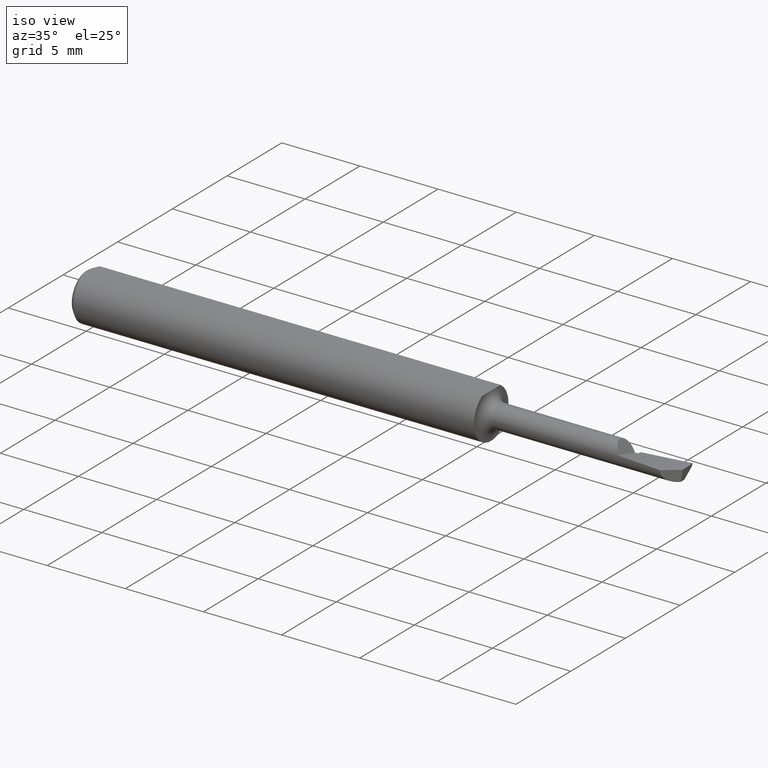
[diagram: clean part render]
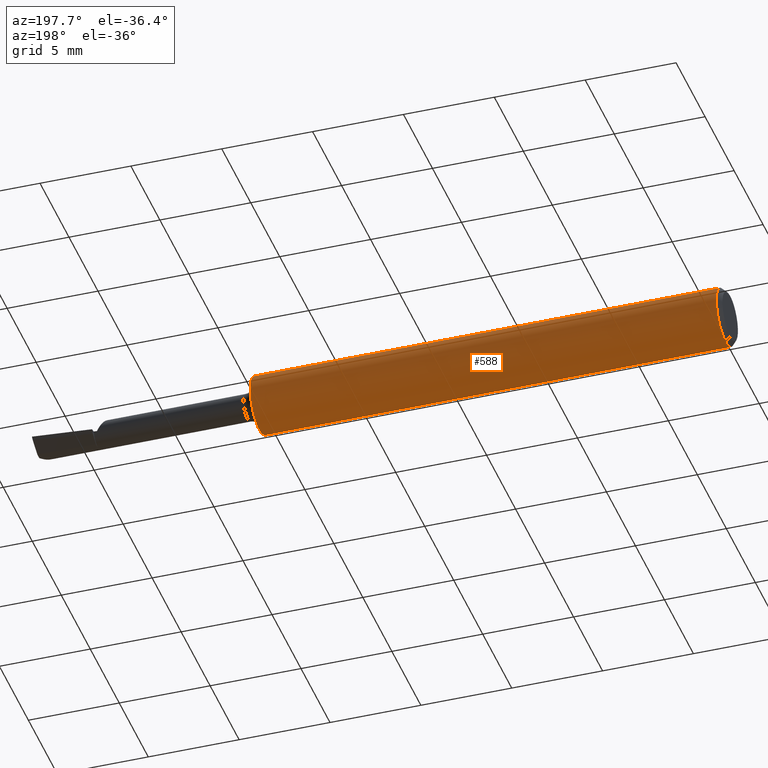
[diagram: tour spotlight — one face highlighted and labeled with its STEP entity id]
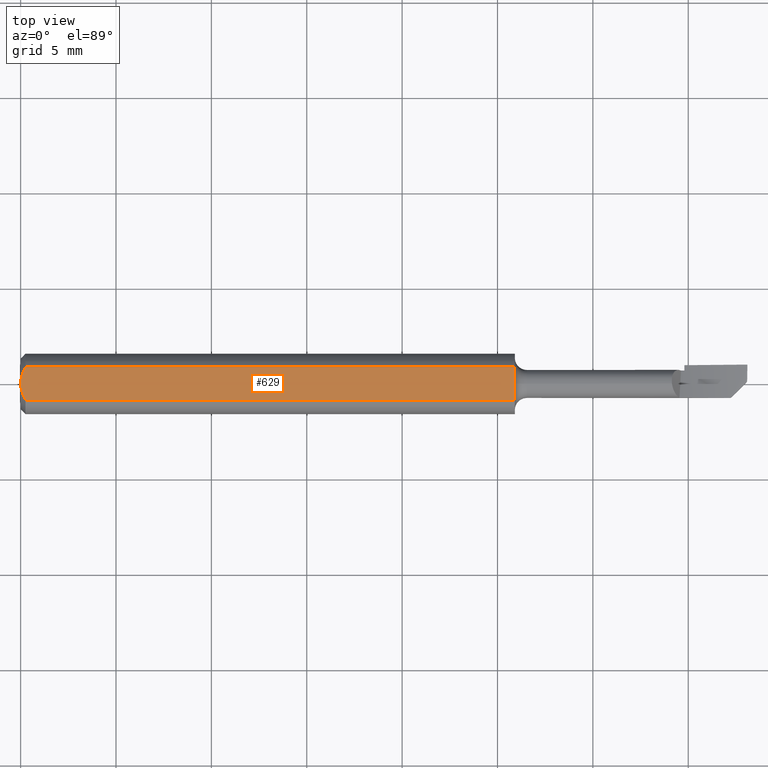
[diagram: tour spotlight — one face highlighted and labeled with its STEP entity id]
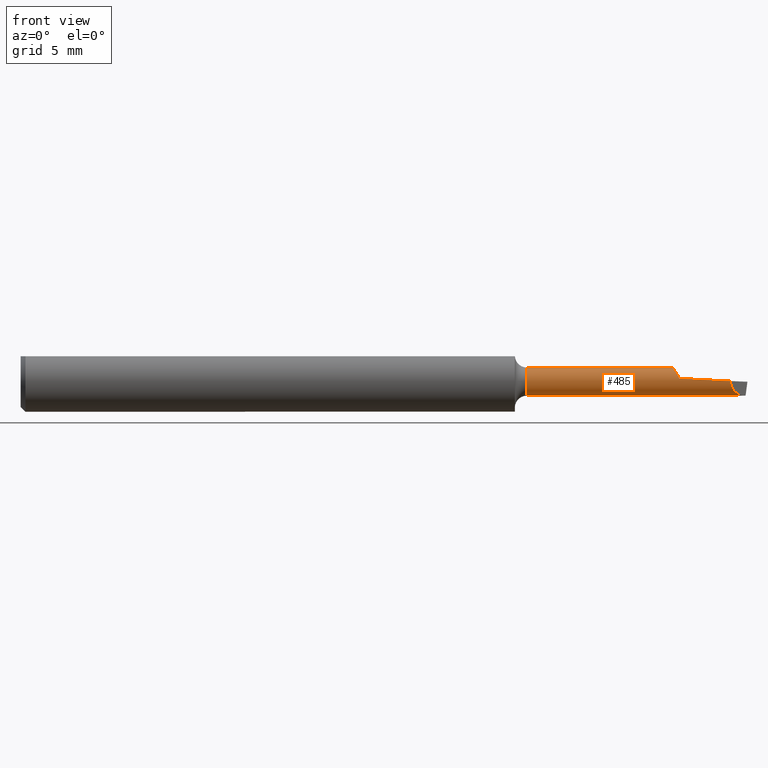
[diagram: tour spotlight — one face highlighted and labeled with its STEP entity id]
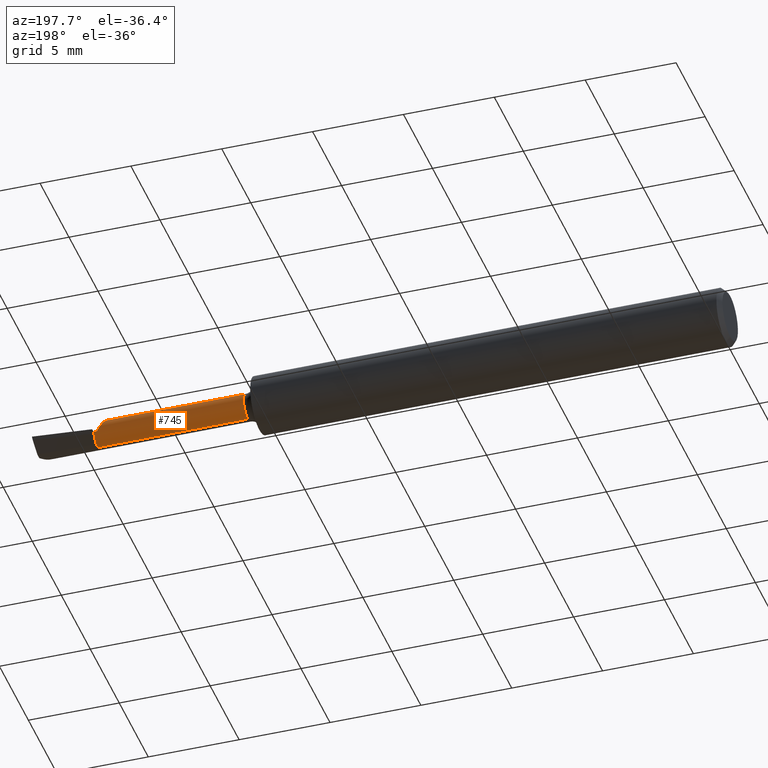
[diagram: tour spotlight — one face highlighted and labeled with its STEP entity id]
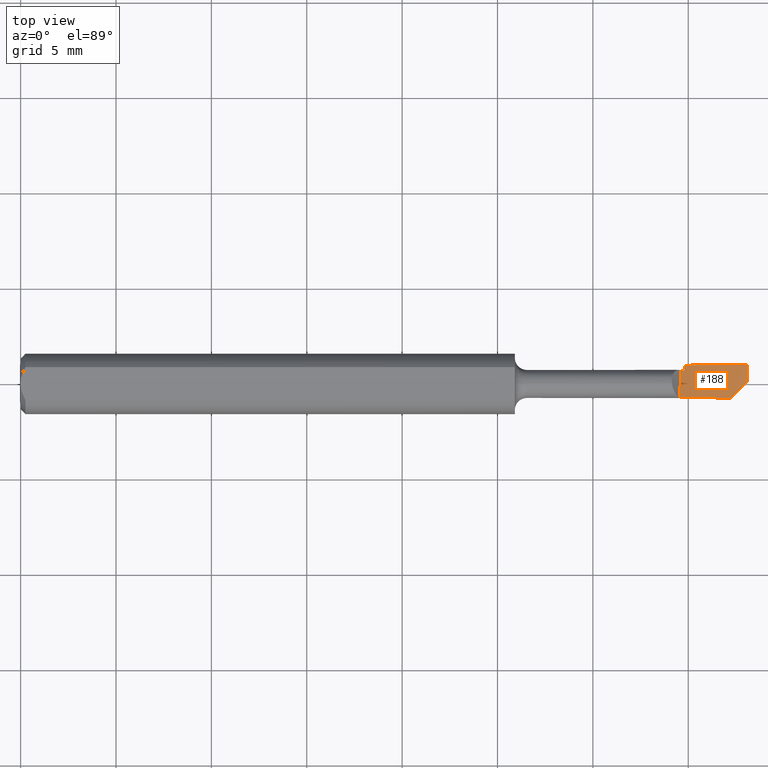
[diagram: tour spotlight — one face highlighted and labeled with its STEP entity id]
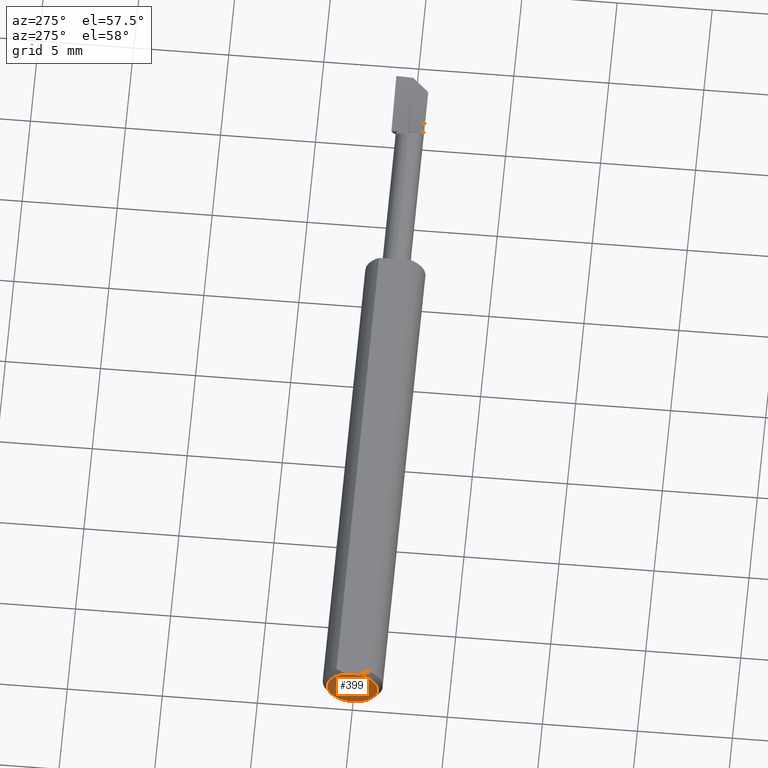
[diagram: tour spotlight — one face highlighted and labeled with its STEP entity id]
A machine part: a face-by-face anatomy tour. The part has 19 B-rep faces; the first image is the clean iso view, then the 6 largest visible faces are spotlighted one at a time (largest first), each with its STEP entity span.

Face 1 — auxiliary view, entity #588. In plain terms, the highlighted cylindrical surface (edge-blend (fillet) strip) has radius 1.5837 mm, axis along (-1, -0, -0).
Definition (entity closure, byte-faithful):
#3 = CYLINDRICAL_SURFACE ( 'NONE', #516, 0.06234999999999997489 ) ;
#21 = DIRECTION ( 'NONE',  ( 0.000000000000000000, 0.000000000000000000, 1.000000000000000000 ) ) ;
#40 = AXIS2_PLACEMENT_3D ( 'NONE', #473, #45, #235 ) ;
#45 = DIRECTION ( 'NONE',  ( -1.000000000000000000, -0.000000000000000000, -0.000000000000000000 ) ) ;
#72 = DIRECTION ( 'NONE',  ( -1.000000000000000000, -0.000000000000000000, -0.000000000000000000 ) ) ;
#76 = DIRECTION ( 'NONE',  ( 1.000000000000000000, 0.000000000000000000, 0.000000000000000000 ) ) ;
#221 = ORIENTED_EDGE ( 'NONE', *, *, #731, .F. ) ;
#235 = DIRECTION ( 'NONE',  ( 0.000000000000000000, 0.000000000000000000, 1.000000000000000000 ) ) ;
#254 = ORIENTED_EDGE ( 'NONE', *, *, #550, .F. ) ;
#268 = CARTESIAN_POINT ( 'NONE',  ( 0.000000000000000000, 0.000000000000000000, 0.000000000000000000 ) ) ;
#269 = EDGE_CURVE ( 'NONE', #472, #372, #536, .T. ) ;
#275 = CARTESIAN_POINT ( 'NONE',  ( 0.01000000000000000021, 0.000000000000000000, -0.06235000000000000264 ) ) ;
#278 = CARTESIAN_POINT ( 'NONE',  ( 0.000000000000000000, -0.03386738844375219298, 0.05234999999999997988 ) ) ;
#286 = CARTESIAN_POINT ( 'NONE',  ( 0.01000000000000000021, 0.000000000000000000, 0.000000000000000000 ) ) ;
#287 = CIRCLE ( 'NONE', #40, 0.06235000000000000264 ) ;
#309 = VERTEX_POINT ( 'NONE', #275 ) ;
#317 = ORIENTED_EDGE ( 'NONE', *, *, #269, .F. ) ;
#340 = LINE ( 'NONE', #278, #794 ) ;
#344 = DIRECTION ( 'NONE',  ( 0.000000000000000000, 0.000000000000000000, 1.000000000000000000 ) ) ;
#372 = VERTEX_POINT ( 'NONE', #433 ) ;
#385 = CARTESIAN_POINT ( 'NONE',  ( 1.020000000000000240, 0.03386738844375217911, 0.05234999999999997988 ) ) ;
#392 = EDGE_LOOP ( 'NONE', ( #317, #254, #459, #221, #800 ) ) ;
#433 = CARTESIAN_POINT ( 'NONE',  ( 0.01000000000000000021, 0.03386738844375217911, 0.05234999999999997988 ) ) ;
#435 = VERTEX_POINT ( 'NONE', #587 ) ;
#436 = CARTESIAN_POINT ( 'NONE',  ( 1.020000000000000240, -0.03386738844375219298, 0.05234999999999997988 ) ) ;
#459 = ORIENTED_EDGE ( 'NONE', *, *, #703, .F. ) ;
#472 = VERTEX_POINT ( 'NONE', #385 ) ;
#473 = CARTESIAN_POINT ( 'NONE',  ( 0.01000000000000000021, 0.000000000000000000, 0.000000000000000000 ) ) ;
#477 = FACE_OUTER_BOUND ( 'NONE', #392, .T. ) ;
#491 = VECTOR ( 'NONE', #792, 39.37007874015748143 ) ;
#500 = EDGE_CURVE ( 'NONE', #372, #309, #832, .T. ) ;
#516 = AXIS2_PLACEMENT_3D ( 'NONE', #268, #72, #344 ) ;
#535 = DIRECTION ( 'NONE',  ( 1.000000000000000000, 0.000000000000000000, 0.000000000000000000 ) ) ;
#536 = LINE ( 'NONE', #655, #491 ) ;
#550 = EDGE_CURVE ( 'NONE', #780, #472, #647, .T. ) ;
#554 = AXIS2_PLACEMENT_3D ( 'NONE', #286, #664, #21 ) ;
#587 = CARTESIAN_POINT ( 'NONE',  ( 0.01000000000000000021, -0.03386738844375219298, 0.05234999999999997988 ) ) ;
#588 = ADVANCED_FACE ( 'NONE', ( #477 ), #3, .T. ) ;
#591 = CARTESIAN_POINT ( 'NONE',  ( 1.020000000000000240, 0.000000000000000000, 0.000000000000000000 ) ) ;
#647 = CIRCLE ( 'NONE', #762, 0.06234999999999997489 ) ;
#655 = CARTESIAN_POINT ( 'NONE',  ( 0.000000000000000000, 0.03386738844375217911, 0.05234999999999997988 ) ) ;
#661 = DIRECTION ( 'NONE',  ( 0.000000000000000000, 0.000000000000000000, -1.000000000000000000 ) ) ;
#664 = DIRECTION ( 'NONE',  ( -1.000000000000000000, -0.000000000000000000, -0.000000000000000000 ) ) ;
#703 = EDGE_CURVE ( 'NONE', #435, #780, #340, .T. ) ;
#731 = EDGE_CURVE ( 'NONE', #309, #435, #287, .T. ) ;
#762 = AXIS2_PLACEMENT_3D ( 'NONE', #591, #76, #661 ) ;
#780 = VERTEX_POINT ( 'NONE', #436 ) ;
#792 = DIRECTION ( 'NONE',  ( -1.000000000000000000, -0.000000000000000000, -0.000000000000000000 ) ) ;
#794 = VECTOR ( 'NONE', #535, 39.37007874015748143 ) ;
#800 = ORIENTED_EDGE ( 'NONE', *, *, #500, .F. ) ;
#832 = CIRCLE ( 'NONE', #554, 0.06235000000000000264 ) ;

Face 2 — top view, entity #629. In plain terms, the highlighted planar face has unit normal (0, -0, 1).
Definition (entity closure, byte-faithful):
#39 = CARTESIAN_POINT ( 'NONE',  ( -7.517250668112770884E-16, 0.005954997531773981688, 0.05234999999999998682 ) ) ;
#41 = EDGE_CURVE ( 'NONE', #159, #435, #117, .T. ) ;
#44 = CARTESIAN_POINT ( 'NONE',  ( -7.325417714211966649E-16, -0.005965286321680239069, 0.05234999999999997988 ) ) ;
#51 = LINE ( 'NONE', #312, #313 ) ;
#61 = EDGE_CURVE ( 'NONE', #372, #159, #132, .T. ) ;
#104 = CARTESIAN_POINT ( 'NONE',  ( 0.01000000000000000021, -0.03386738844375219298, 0.05234999999999997988 ) ) ;
#105 = CARTESIAN_POINT ( 'NONE',  ( 1.020054509425549538, 0.002221241925613740269, 0.05234999999999998682 ) ) ;
#117 = B_SPLINE_CURVE_WITH_KNOTS ( 'NONE', 3,
 ( #681, #44, #626, #749, #167, #104 ),
 .UNSPECIFIED., .F., .F.,
 ( 4, 2, 4 ),
 ( 0.001820301466808375672, 0.002269751589838321822, 0.002719201712868267538 ),
 .UNSPECIFIED. ) ;
#123 = CARTESIAN_POINT ( 'NONE',  ( 1.020016726836668663, -0.008831220142528684036, 0.05234999999999998682 ) ) ;
#132 = B_SPLINE_CURVE_WITH_KNOTS ( 'NONE', 3,
 ( #229, #820, #246, #183, #39, #363 ),
 .UNSPECIFIED., .F., .F.,
 ( 4, 2, 4 ),
 ( 0.0009229516234080545421, 0.001371626545108214999, 0.001820301466808375672 ),
 .UNSPECIFIED. ) ;
#135 = ORIENTED_EDGE ( 'NONE', *, *, #41, .T. ) ;
#157 = CARTESIAN_POINT ( 'NONE',  ( 1.020000000000000462, -0.01324679206449632871, 0.05234999999999997988 ) ) ;
#159 = VERTEX_POINT ( 'NONE', #449 ) ;
#167 = CARTESIAN_POINT ( 'NONE',  ( 0.007163450771350544227, -0.02864528976618612235, 0.05234999999999998682 ) ) ;
#183 = CARTESIAN_POINT ( 'NONE',  ( 0.001063697276021673783, 0.01189177144351694256, 0.05234999999999998682 ) ) ;
#192 = ORIENTED_EDGE ( 'NONE', *, *, #790, .F. ) ;
#199 = EDGE_CURVE ( 'NONE', #643, #522, #796, .T. ) ;
#207 = DIRECTION ( 'NONE',  ( 0.000000000000000000, -1.000000000000000000, -1.036675771730518732E-16 ) ) ;
#209 = ORIENTED_EDGE ( 'NONE', *, *, #269, .T. ) ;
#218 = AXIS2_PLACEMENT_3D ( 'NONE', #776, #482, #207 ) ;
#229 = CARTESIAN_POINT ( 'NONE',  ( 0.01000000000000000021, 0.03386738844375217911, 0.05234999999999997988 ) ) ;
#246 = CARTESIAN_POINT ( 'NONE',  ( 0.004671770759546980435, 0.02323517832780102113, 0.05234999999999997988 ) ) ;
#253 = CARTESIAN_POINT ( 'NONE',  ( 1.020054509425549760, 0.000000000000000000, 0.05234999999999997988 ) ) ;
#269 = EDGE_CURVE ( 'NONE', #472, #372, #536, .T. ) ;
#278 = CARTESIAN_POINT ( 'NONE',  ( 0.000000000000000000, -0.03386738844375219298, 0.05234999999999997988 ) ) ;
#300 = VERTEX_POINT ( 'NONE', #345 ) ;
#312 = CARTESIAN_POINT ( 'NONE',  ( 1.020000000000000240, 0.1123499999999999360, 0.05234999999999998682 ) ) ;
#313 = VECTOR ( 'NONE', #572, 39.37007874015748143 ) ;
#339 = B_SPLINE_CURVE_WITH_KNOTS ( 'NONE', 3,
 ( #418, #801, #669, #732, #105, #564 ),
 .UNSPECIFIED., .F., .F.,
 ( 4, 2, 4 ),
 ( 0.006944950396032058791, 0.007114182746579529246, 0.007283415097126999700 ),
 .UNSPECIFIED. ) ;
#340 = LINE ( 'NONE', #278, #794 ) ;
#342 = ORIENTED_EDGE ( 'NONE', *, *, #465, .F. ) ;
#345 = CARTESIAN_POINT ( 'NONE',  ( 1.020000000000000240, 0.01324679206449631483, 0.05234999999999997988 ) ) ;
#363 = CARTESIAN_POINT ( 'NONE',  ( 0.000000000000000000, -5.426997665009263557E-18, 0.05234999999999997988 ) ) ;
#372 = VERTEX_POINT ( 'NONE', #433 ) ;
#385 = CARTESIAN_POINT ( 'NONE',  ( 1.020000000000000240, 0.03386738844375217911, 0.05234999999999997988 ) ) ;
#400 = CARTESIAN_POINT ( 'NONE',  ( 1.020054509425549760, 0.000000000000000000, 0.05234999999999997988 ) ) ;
#410 = FACE_OUTER_BOUND ( 'NONE', #533, .T. ) ;
#418 = CARTESIAN_POINT ( 'NONE',  ( 1.020000000000000240, 0.01324679206449631483, 0.05234999999999997988 ) ) ;
#432 = CARTESIAN_POINT ( 'NONE',  ( 1.020000000000000240, 0.1123499999999999360, 0.05234999999999998682 ) ) ;
#433 = CARTESIAN_POINT ( 'NONE',  ( 0.01000000000000000021, 0.03386738844375217911, 0.05234999999999997988 ) ) ;
#435 = VERTEX_POINT ( 'NONE', #587 ) ;
#436 = CARTESIAN_POINT ( 'NONE',  ( 1.020000000000000240, -0.03386738844375219298, 0.05234999999999997988 ) ) ;
#449 = CARTESIAN_POINT ( 'NONE',  ( 0.000000000000000000, -5.426997665009263557E-18, 0.05234999999999997988 ) ) ;
#450 = ORIENTED_EDGE ( 'NONE', *, *, #781, .F. ) ;
#465 = EDGE_CURVE ( 'NONE', #472, #300, #51, .T. ) ;
#469 = PLANE ( 'NONE',  #218 ) ;
#472 = VERTEX_POINT ( 'NONE', #385 ) ;
#482 = DIRECTION ( 'NONE',  ( 0.000000000000000000, -1.036675771730518732E-16, 1.000000000000000000 ) ) ;
#491 = VECTOR ( 'NONE', #792, 39.37007874015748143 ) ;
#512 = CARTESIAN_POINT ( 'NONE',  ( 1.020000000000000240, -0.01103915351157545334, 0.05234999999999998682 ) ) ;
#522 = VERTEX_POINT ( 'NONE', #157 ) ;
#533 = EDGE_LOOP ( 'NONE', ( #746, #135, #545, #192, #741, #450, #342, #209 ) ) ;
#535 = DIRECTION ( 'NONE',  ( 1.000000000000000000, 0.000000000000000000, 0.000000000000000000 ) ) ;
#536 = LINE ( 'NONE', #655, #491 ) ;
#545 = ORIENTED_EDGE ( 'NONE', *, *, #703, .T. ) ;
#564 = CARTESIAN_POINT ( 'NONE',  ( 1.020054509425549760, 0.000000000000000000, 0.05234999999999997988 ) ) ;
#572 = DIRECTION ( 'NONE',  ( 0.000000000000000000, -1.000000000000000000, -1.036675771730518732E-16 ) ) ;
#580 = CARTESIAN_POINT ( 'NONE',  ( 1.020044089140406340, -0.004415460766874475772, 0.05234999999999997988 ) ) ;
#587 = CARTESIAN_POINT ( 'NONE',  ( 0.01000000000000000021, -0.03386738844375219298, 0.05234999999999997988 ) ) ;
#626 = CARTESIAN_POINT ( 'NONE',  ( 0.001055043921633259376, -0.01186408073210959077, 0.05234999999999997988 ) ) ;
#629 = ADVANCED_FACE ( 'NONE', ( #410 ), #469, .T. ) ;
#643 = VERTEX_POINT ( 'NONE', #400 ) ;
#655 = CARTESIAN_POINT ( 'NONE',  ( 0.000000000000000000, 0.03386738844375217911, 0.05234999999999997988 ) ) ;
#669 = CARTESIAN_POINT ( 'NONE',  ( 1.020016726754685576, 0.008831237203312275463, 0.05234999999999997988 ) ) ;
#681 = CARTESIAN_POINT ( 'NONE',  ( 0.000000000000000000, -5.426997665009263557E-18, 0.05234999999999997988 ) ) ;
#682 = DIRECTION ( 'NONE',  ( 0.000000000000000000, -1.000000000000000000, -1.036675771730518732E-16 ) ) ;
#703 = EDGE_CURVE ( 'NONE', #435, #780, #340, .T. ) ;
#732 = CARTESIAN_POINT ( 'NONE',  ( 1.020044089684449151, 0.004415369138371852756, 0.05234999999999998682 ) ) ;
#741 = ORIENTED_EDGE ( 'NONE', *, *, #199, .F. ) ;
#742 = LINE ( 'NONE', #432, #778 ) ;
#746 = ORIENTED_EDGE ( 'NONE', *, *, #61, .T. ) ;
#749 = CARTESIAN_POINT ( 'NONE',  ( 0.004679365186781217663, -0.02325953974079653444, 0.05234999999999998682 ) ) ;
#756 = CARTESIAN_POINT ( 'NONE',  ( 1.020054509425549316, -0.002207638552920876233, 0.05234999999999997988 ) ) ;
#766 = CARTESIAN_POINT ( 'NONE',  ( 1.020000000000000462, -0.01324679206449632871, 0.05234999999999997988 ) ) ;
#776 = CARTESIAN_POINT ( 'NONE',  ( 1.500787401574803281, 0.08234999999999999265, 0.05234999999999998682 ) ) ;
#778 = VECTOR ( 'NONE', #682, 39.37007874015748143 ) ;
#780 = VERTEX_POINT ( 'NONE', #436 ) ;
#781 = EDGE_CURVE ( 'NONE', #300, #643, #339, .T. ) ;
#790 = EDGE_CURVE ( 'NONE', #522, #780, #742, .T. ) ;
#792 = DIRECTION ( 'NONE',  ( -1.000000000000000000, -0.000000000000000000, -0.000000000000000000 ) ) ;
#794 = VECTOR ( 'NONE', #535, 39.37007874015748143 ) ;
#796 = B_SPLINE_CURVE_WITH_KNOTS ( 'NONE', 3,
 ( #253, #756, #580, #123, #512, #766 ),
 .UNSPECIFIED., .F., .F.,
 ( 4, 2, 4 ),
 ( 1.787496019292306224E-19, 0.0001681959345183834385, 0.0003363918690367666601 ),
 .UNSPECIFIED. ) ;
#801 = CARTESIAN_POINT ( 'NONE',  ( 1.020000000000000240, 0.01103926091051973292, 0.05234999999999997988 ) ) ;
#820 = CARTESIAN_POINT ( 'NONE',  ( 0.007185421074056353059, 0.02868573718286557619, 0.05234999999999997988 ) ) ;

Face 3 — front view, entity #485. In plain terms, the highlighted cylindrical surface (edge-blend (fillet) strip) has radius 0.7366 mm, axis along (-1, -0, -0).
Definition (entity closure, byte-faithful):
#5 = CARTESIAN_POINT ( 'NONE',  ( 1.344726164215733766, -0.003004772557674084601, 0.02899992847466937099 ) ) ;
#17 = CARTESIAN_POINT ( 'NONE',  ( 1.349748066349188091, -0.01719362167920830339, 0.02335794584430941206 ) ) ;
#24 = CARTESIAN_POINT ( 'NONE',  ( 1.352629411863616182, -0.02204390430116885680, 0.01911207971779406781 ) ) ;
#26 = DIRECTION ( 'NONE',  ( 1.000000000000000000, -0.000000000000000000, -0.000000000000000000 ) ) ;
#46 = EDGE_CURVE ( 'NONE', #708, #653, #359, .T. ) ;
#49 = CARTESIAN_POINT ( 'NONE',  ( 0.000000000000000000, 3.551475717527328763E-18, -0.02900000000000003617 ) ) ;
#50 =( BOUNDED_CURVE ( )  B_SPLINE_CURVE ( 2, ( #146, #721, #594 ),
 .UNSPECIFIED., .F., .T. ) 
 B_SPLINE_CURVE_WITH_KNOTS ( ( 3, 3 ),
 ( 0.08047774069797776486, 0.3228623492509392068 ),
 .UNSPECIFIED. ) 
 CURVE ( )  GEOMETRIC_REPRESENTATION_ITEM ( )  RATIONAL_B_SPLINE_CURVE ( ( 0.9829172617772616860, 0.9766765724518691183, 0.9793588826515180479 ) ) 
 REPRESENTATION_ITEM ( '' )  );
#55 = FACE_OUTER_BOUND ( 'NONE', #270, .T. ) ;
#85 = CARTESIAN_POINT ( 'NONE',  ( 1.464867652343246229, -0.02962234952521405201, -0.01641024028969626306 ) ) ;
#86 = DIRECTION ( 'NONE',  ( 0.000000000000000000, 0.000000000000000000, 1.000000000000000000 ) ) ;
#109 = AXIS2_PLACEMENT_3D ( 'NONE', #601, #782, #715 ) ;
#143 = CARTESIAN_POINT ( 'NONE',  ( 1.344279704701649258, -1.051655313558084413E-06, 0.02900531566010896428 ) ) ;
#146 = CARTESIAN_POINT ( 'NONE',  ( 1.465509546751890158, -0.02898045511657077258, 0.001064528645190098528 ) ) ;
#147 = CARTESIAN_POINT ( 'NONE',  ( 1.348641358214019981, -0.01492363627753145669, 0.02488129085342524749 ) ) ;
#150 = CARTESIAN_POINT ( 'NONE',  ( 1.465509546751890158, -0.02898045511657077258, 0.001064528645190098528 ) ) ;
#177 = B_SPLINE_CURVE_WITH_KNOTS ( 'NONE', 3,
 ( #602, #787, #599, #24, #349, #711, #279, #17, #216, #147, #282, #544, #592, #5, #143 ),
 .UNSPECIFIED., .F., .F.,
 ( 4, 2, 2, 2, 1, 2, 2, 4 ),
 ( 0.000000000000000000, 0.2374222107961118655, 0.4748444215922237310, 0.5045221979417364722, 0.5341999742912492133, 0.5935555269902809128, 0.7122666323883383166, 0.9496888431844479062 ),
 .UNSPECIFIED. ) ;
#179 = VERTEX_POINT ( 'NONE', #704 ) ;
#196 = VERTEX_POINT ( 'NONE', #825 ) ;
#204 = VERTEX_POINT ( 'NONE', #150 ) ;
#214 = CARTESIAN_POINT ( 'NONE',  ( 1.045000000000000373, 0.000000000000000000, 0.02900000000000007086 ) ) ;
#216 = CARTESIAN_POINT ( 'NONE',  ( 1.349173603411896627, -0.01607537474992507681, 0.02416714976763952721 ) ) ;
#217 = ORIENTED_EDGE ( 'NONE', *, *, #807, .T. ) ;
#219 = CARTESIAN_POINT ( 'NONE',  ( 1.477003447669319014, -0.01748655419914141654, -0.02900000000000016800 ) ) ;
#222 = CARTESIAN_POINT ( 'NONE',  ( 1.465509546751890158, -0.02898045511657077258, 0.001064528645190098528 ) ) ;
#248 = CARTESIAN_POINT ( 'NONE',  ( 1.494490001868460816, 1.707404996040164512E-17, -0.02900000000000007086 ) ) ;
#270 = EDGE_LOOP ( 'NONE', ( #795, #217, #346, #639, #666, #496, #529 ) ) ;
#279 = CARTESIAN_POINT ( 'NONE',  ( 1.350140423360584929, -0.01793032781908371689, 0.02279731573702539413 ) ) ;
#282 = CARTESIAN_POINT ( 'NONE',  ( 1.347633158137486076, -0.01259069581527005877, 0.02618489251447328470 ) ) ;
#285 = VECTOR ( 'NONE', #561, 39.37007874015748143 ) ;
#289 = EDGE_CURVE ( 'NONE', #653, #730, #710, .T. ) ;
#301 = EDGE_CURVE ( 'NONE', #196, #179, #177, .T. ) ;
#324 = VECTOR ( 'NONE', #568, 39.37007874015748143 ) ;
#332 = CARTESIAN_POINT ( 'NONE',  ( 1.494490001868460816, 1.707404996040164512E-17, -0.02900000000000007086 ) ) ;
#343 = EDGE_CURVE ( 'NONE', #179, #730, #729, .T. ) ;
#346 = ORIENTED_EDGE ( 'NONE', *, *, #578, .F. ) ;
#349 = CARTESIAN_POINT ( 'NONE',  ( 1.351339622621705594, -0.02006848466437715153, 0.02105972589682208324 ) ) ;
#356 =( BOUNDED_CURVE ( )  B_SPLINE_CURVE ( 3, ( #222, #85, #219, #332 ),
 .UNSPECIFIED., .F., .T. ) 
 B_SPLINE_CURVE_WITH_KNOTS ( ( 4, 4 ),
 ( 6.246469174072000641, 7.853981633974489895 ),
 .UNSPECIFIED. ) 
 CURVE ( )  GEOMETRIC_REPRESENTATION_ITEM ( )  RATIONAL_B_SPLINE_CURVE ( ( 1.000000000000000000, 0.7960048308304698006, 0.7960048308304698006, 1.000000000000000000 ) ) 
 REPRESENTATION_ITEM ( '' )  );
#357 = CARTESIAN_POINT ( 'NONE',  ( 0.000000000000000000, 0.000000000000000000, 0.02900000000000003617 ) ) ;
#359 = LINE ( 'NONE', #49, #324 ) ;
#364 = LINE ( 'NONE', #608, #674 ) ;
#403 = VERTEX_POINT ( 'NONE', #248 ) ;
#485 = ADVANCED_FACE ( 'NONE', ( #55 ), #654, .T. ) ;
#496 = ORIENTED_EDGE ( 'NONE', *, *, #343, .T. ) ;
#529 = ORIENTED_EDGE ( 'NONE', *, *, #289, .F. ) ;
#542 = AXIS2_PLACEMENT_3D ( 'NONE', #595, #716, #86 ) ;
#544 = CARTESIAN_POINT ( 'NONE',  ( 1.347036078512089619, -0.01099654640964999562, 0.02688729779581930032 ) ) ;
#561 = DIRECTION ( 'NONE',  ( -1.000000000000000000, -0.000000000000000000, -0.000000000000000000 ) ) ;
#568 = DIRECTION ( 'NONE',  ( -1.000000000000000000, -0.000000000000000000, -0.000000000000000000 ) ) ;
#578 = EDGE_CURVE ( 'NONE', #204, #403, #356, .T. ) ;
#592 = CARTESIAN_POINT ( 'NONE',  ( 1.345470000912774688, -0.006204670990901267960, 0.02852902593320150865 ) ) ;
#594 = CARTESIAN_POINT ( 'NONE',  ( 1.359812946886985507, -0.02825286555653429288, 0.006540304873964293553 ) ) ;
#595 = CARTESIAN_POINT ( 'NONE',  ( 1.045000000000000373, 0.000000000000000000, 0.000000000000000000 ) ) ;
#599 = CARTESIAN_POINT ( 'NONE',  ( 1.355792604604262985, -0.02567552928509290663, 0.01385541424529569514 ) ) ;
#601 = CARTESIAN_POINT ( 'NONE',  ( 0.000000000000000000, 0.000000000000000000, 0.000000000000000000 ) ) ;
#602 = CARTESIAN_POINT ( 'NONE',  ( 1.359812946886985507, -0.02825286555653429288, 0.006540304873964293553 ) ) ;
#608 = CARTESIAN_POINT ( 'NONE',  ( 1.300000000000000044, 0.000000000000000000, -0.02900000000000007086 ) ) ;
#634 = EDGE_CURVE ( 'NONE', #204, #196, #50, .T. ) ;
#639 = ORIENTED_EDGE ( 'NONE', *, *, #634, .T. ) ;
#653 = VERTEX_POINT ( 'NONE', #718 ) ;
#654 = CYLINDRICAL_SURFACE ( 'NONE', #109, 0.02900000000000003617 ) ;
#666 = ORIENTED_EDGE ( 'NONE', *, *, #301, .T. ) ;
#674 = VECTOR ( 'NONE', #26, 39.37007874015748143 ) ;
#704 = CARTESIAN_POINT ( 'NONE',  ( 1.344279704701649258, -1.051655313558084413E-06, 0.02900531566010896428 ) ) ;
#708 = VERTEX_POINT ( 'NONE', #786 ) ;
#710 = CIRCLE ( 'NONE', #542, 0.02900000000000007086 ) ;
#711 = CARTESIAN_POINT ( 'NONE',  ( 1.350216892744018349, -0.01806687995065978450, 0.02268633897093772292 ) ) ;
#715 = DIRECTION ( 'NONE',  ( 0.000000000000000000, 0.000000000000000000, 1.000000000000000000 ) ) ;
#716 = DIRECTION ( 'NONE',  ( -1.000000000000000000, -0.000000000000000000, -0.000000000000000000 ) ) ;
#718 = CARTESIAN_POINT ( 'NONE',  ( 1.045000000000000373, 5.082284216461520734E-18, -0.02900000000000007086 ) ) ;
#721 = CARTESIAN_POINT ( 'NONE',  ( 1.412853423040207890, -0.02887860673711884277, 0.003837222710528911691 ) ) ;
#729 = LINE ( 'NONE', #357, #285 ) ;
#730 = VERTEX_POINT ( 'NONE', #214 ) ;
#782 = DIRECTION ( 'NONE',  ( -1.000000000000000000, -0.000000000000000000, -0.000000000000000000 ) ) ;
#786 = CARTESIAN_POINT ( 'NONE',  ( 1.370000000000000329, 0.000000000000000000, -0.02900000000000007086 ) ) ;
#787 = CARTESIAN_POINT ( 'NONE',  ( 1.357666008102997868, -0.02732945430762753411, 0.01053007296735504125 ) ) ;
#795 = ORIENTED_EDGE ( 'NONE', *, *, #46, .F. ) ;
#807 = EDGE_CURVE ( 'NONE', #708, #403, #364, .T. ) ;
#825 = CARTESIAN_POINT ( 'NONE',  ( 1.359812946886985507, -0.02825286555653429288, 0.006540304873964293553 ) ) ;

Face 4 — auxiliary view, entity #745. In plain terms, the highlighted cylindrical surface (edge-blend (fillet) strip) has radius 0.7366 mm, axis along (-1, -0, -0).
Definition (entity closure, byte-faithful):
#16 = DIRECTION ( 'NONE',  ( 0.000000000000000000, 0.000000000000000000, 1.000000000000000000 ) ) ;
#42 = CARTESIAN_POINT ( 'NONE',  ( 1.344038699846793250, 0.001865842263035611889, 0.02894227192546876964 ) ) ;
#46 = EDGE_CURVE ( 'NONE', #708, #653, #359, .T. ) ;
#49 = CARTESIAN_POINT ( 'NONE',  ( 0.000000000000000000, 3.551475717527328763E-18, -0.02900000000000003617 ) ) ;
#69 = CARTESIAN_POINT ( 'NONE',  ( 1.351019987044591142, 0.02659785948365133920, 0.01155670766509940030 ) ) ;
#71 = EDGE_CURVE ( 'NONE', #730, #653, #501, .T. ) ;
#88 = EDGE_CURVE ( 'NONE', #815, #334, #672, .T. ) ;
#91 = VERTEX_POINT ( 'NONE', #319 ) ;
#93 = B_SPLINE_CURVE_WITH_KNOTS ( 'NONE', 3,
 ( #809, #683, #107, #366, #42, #676 ),
 .UNSPECIFIED., .F., .F.,
 ( 4, 2, 4 ),
 ( 0.9496888431844479062, 0.9748444215922239531, 1.000000000000000000 ),
 .UNSPECIFIED. ) ;
#107 = CARTESIAN_POINT ( 'NONE',  ( 1.344175667506402494, 0.0007500834462737943076, 0.02899269570108420693 ) ) ;
#137 = CARTESIAN_POINT ( 'NONE',  ( 1.348826993607886715, 0.02449701040838887442, 0.01554878266840158466 ) ) ;
#149 = CARTESIAN_POINT ( 'NONE',  ( 1.370000000000000329, 0.000000000000000000, 0.000000000000000000 ) ) ;
#152 = ORIENTED_EDGE ( 'NONE', *, *, #375, .T. ) ;
#174 = DIRECTION ( 'NONE',  ( -1.000000000000000000, -0.000000000000000000, -0.000000000000000000 ) ) ;
#179 = VERTEX_POINT ( 'NONE', #704 ) ;
#194 = CARTESIAN_POINT ( 'NONE',  ( 1.357117877114487614, 0.02914455547433147942, 0.001505839664468261799 ) ) ;
#198 = CARTESIAN_POINT ( 'NONE',  ( 1.345136841044362708, 0.01792130582730419239, 0.02308197722382085079 ) ) ;
#202 = CARTESIAN_POINT ( 'NONE',  ( 1.351082740088656919, 0.02664559147929465577, 0.01144622539910728799 ) ) ;
#210 = DIRECTION ( 'NONE',  ( -1.000000000000000000, -0.000000000000000000, -0.000000000000000000 ) ) ;
#214 = CARTESIAN_POINT ( 'NONE',  ( 1.045000000000000373, 0.000000000000000000, 0.02900000000000007086 ) ) ;
#226 = CARTESIAN_POINT ( 'NONE',  ( 0.000000000000000000, 0.000000000000000000, 0.000000000000000000 ) ) ;
#251 = ORIENTED_EDGE ( 'NONE', *, *, #343, .F. ) ;
#256 = CARTESIAN_POINT ( 'NONE',  ( 1.351134900953135043, 0.02668471954386715528, 0.01135456625681194494 ) ) ;
#263 = ORIENTED_EDGE ( 'NONE', *, *, #71, .F. ) ;
#267 = ORIENTED_EDGE ( 'NONE', *, *, #558, .T. ) ;
#284 = VERTEX_POINT ( 'NONE', #470 ) ;
#285 = VECTOR ( 'NONE', #561, 39.37007874015748143 ) ;
#290 = ORIENTED_EDGE ( 'NONE', *, *, #393, .F. ) ;
#291 = DIRECTION ( 'NONE',  ( 0.000000000000000000, 0.000000000000000000, 1.000000000000000000 ) ) ;
#296 = CARTESIAN_POINT ( 'NONE',  ( 1.370000000000000329, 0.02801306668690310003, -0.007501206222680361843 ) ) ;
#298 = AXIS2_PLACEMENT_3D ( 'NONE', #226, #174, #291 ) ;
#319 = CARTESIAN_POINT ( 'NONE',  ( 1.344000000000000306, 0.002234151730266082173, 0.02891381272067298364 ) ) ;
#324 = VECTOR ( 'NONE', #568, 39.37007874015748143 ) ;
#329 = CARTESIAN_POINT ( 'NONE',  ( 1.362968313061896142, 0.02791573318774977219, -0.007855688422434314519 ) ) ;
#334 = VERTEX_POINT ( 'NONE', #296 ) ;
#343 = EDGE_CURVE ( 'NONE', #179, #730, #729, .T. ) ;
#354 = DIRECTION ( 'NONE',  ( 0.000000000000000000, 0.000000000000000000, 1.000000000000000000 ) ) ;
#357 = CARTESIAN_POINT ( 'NONE',  ( 0.000000000000000000, 0.000000000000000000, 0.02900000000000003617 ) ) ;
#358 = CARTESIAN_POINT ( 'NONE',  ( 1.344000000000000306, 0.002234151730266082173, 0.02891381272067298364 ) ) ;
#359 = LINE ( 'NONE', #49, #324 ) ;
#366 = CARTESIAN_POINT ( 'NONE',  ( 1.344081522667953665, 0.001495256800724691342, 0.02896382634066030359 ) ) ;
#375 = EDGE_CURVE ( 'NONE', #179, #91, #93, .T. ) ;
#393 = EDGE_CURVE ( 'NONE', #284, #91, #549, .T. ) ;
#395 = CARTESIAN_POINT ( 'NONE',  ( 1.351843152719555574, 0.02721280358920984827, 0.01011102640573631126 ) ) ;
#429 = EDGE_CURVE ( 'NONE', #284, #815, #714, .T. ) ;
#444 = CARTESIAN_POINT ( 'NONE',  ( 1.045000000000000373, 0.000000000000000000, 0.000000000000000000 ) ) ;
#446 = CARTESIAN_POINT ( 'NONE',  ( 1.350284278597591259, 0.02599811356063159648, 0.01286461622531338486 ) ) ;
#453 = CARTESIAN_POINT ( 'NONE',  ( 1.370000000000000329, 0.02801306668690310003, -0.007501206222680361843 ) ) ;
#457 = CARTESIAN_POINT ( 'NONE',  ( 1.344000000000000306, 0.01194798285642127700, 0.02642433926634051369 ) ) ;
#460 = CARTESIAN_POINT ( 'NONE',  ( 1.359724827283128157, 0.02932526709454043312, -0.002847079724959221316 ) ) ;
#470 = CARTESIAN_POINT ( 'NONE',  ( 1.344000000000000306, 0.01194798285642127700, 0.02642433926634051369 ) ) ;
#495 = CARTESIAN_POINT ( 'NONE',  ( 1.343999999999999639, 0.008700994265475785541, 0.02721809081443557835 ) ) ;
#501 = CIRCLE ( 'NONE', #736, 0.02900000000000007086 ) ;
#511 = CARTESIAN_POINT ( 'NONE',  ( 1.346923253374048945, 0.02174496842412527303, 0.01927158703929140668 ) ) ;
#515 = CARTESIAN_POINT ( 'NONE',  ( 1.353177039832701212, 0.02807909039746793109, 0.007952191480484826352 ) ) ;
#520 = CARTESIAN_POINT ( 'NONE',  ( 1.344360962783672564, 0.01499331302565226967, 0.02504737014124861633 ) ) ;
#549 = B_SPLINE_CURVE_WITH_KNOTS ( 'NONE', 3,
 ( #740, #495, #744, #358 ),
 .UNSPECIFIED., .F., .F.,
 ( 4, 4 ),
 ( 0.000000000000000000, 1.000000000000000000 ),
 .UNSPECIFIED. ) ;
#551 = CARTESIAN_POINT ( 'NONE',  ( 1.362968313061896142, 0.02791573318774977219, -0.007855688422434314519 ) ) ;
#558 = EDGE_CURVE ( 'NONE', #334, #708, #777, .T. ) ;
#560 = FACE_OUTER_BOUND ( 'NONE', #656, .T. ) ;
#561 = DIRECTION ( 'NONE',  ( -1.000000000000000000, -0.000000000000000000, -0.000000000000000000 ) ) ;
#568 = DIRECTION ( 'NONE',  ( -1.000000000000000000, -0.000000000000000000, -0.000000000000000000 ) ) ;
#579 = CARTESIAN_POINT ( 'NONE',  ( 1.347622489973719029, 0.02292405174080492172, 0.01785946520634043577 ) ) ;
#607 = AXIS2_PLACEMENT_3D ( 'NONE', #149, #210, #16 ) ;
#613 = CARTESIAN_POINT ( 'NONE',  ( 1.362968313061896142, 0.02791573318774977219, -0.007855688422434314519 ) ) ;
#646 = CARTESIAN_POINT ( 'NONE',  ( 1.349934512459467273, 0.02567087733510973330, 0.01349928262874765077 ) ) ;
#653 = VERTEX_POINT ( 'NONE', #718 ) ;
#656 = EDGE_LOOP ( 'NONE', ( #267, #700, #263, #251, #152, #290, #772, #663 ) ) ;
#663 = ORIENTED_EDGE ( 'NONE', *, *, #88, .T. ) ;
#672 =( BOUNDED_CURVE ( )  B_SPLINE_CURVE ( 2, ( #613, #770, #453 ),
 .UNSPECIFIED., .F., .F. ) 
 B_SPLINE_CURVE_WITH_KNOTS ( ( 3, 3 ),
 ( 0.6843654409706459996, 0.7004615063419170617 ),
 .UNSPECIFIED. ) 
 CURVE ( )  GEOMETRIC_REPRESENTATION_ITEM ( )  RATIONAL_B_SPLINE_CURVE ( ( 0.9792068466601353549, 0.9790463917204706989, 0.9789252863740107724 ) ) 
 REPRESENTATION_ITEM ( '' )  );
#676 = CARTESIAN_POINT ( 'NONE',  ( 1.344000000000000306, 0.002234151730266082173, 0.02891381272067298364 ) ) ;
#683 = CARTESIAN_POINT ( 'NONE',  ( 1.344235539540598046, 0.0003176009087006236671, 0.02900000756922955711 ) ) ;
#691 = DIRECTION ( 'NONE',  ( -1.000000000000000000, -0.000000000000000000, -0.000000000000000000 ) ) ;
#693 = CARTESIAN_POINT ( 'NONE',  ( 1.349254436275052926, 0.02498871357020044856, 0.01474660953191314801 ) ) ;
#700 = ORIENTED_EDGE ( 'NONE', *, *, #46, .T. ) ;
#704 = CARTESIAN_POINT ( 'NONE',  ( 1.344279704701649258, -1.051655313558084413E-06, 0.02900531566010896428 ) ) ;
#708 = VERTEX_POINT ( 'NONE', #786 ) ;
#714 = B_SPLINE_CURVE_WITH_KNOTS ( 'NONE', 3,
 ( #457, #520, #198, #511, #579, #137, #693, #646, #446, #759, #829, #69, #202, #256, #395, #515, #194, #460, #329 ),
 .UNSPECIFIED., .F., .F.,
 ( 4, 2, 2, 2, 1, 1, 1, 2, 2, 2, 4 ),
 ( 0.000000000000000000, 0.2500000000002089995, 0.3750000000003107514, 0.4375000000003649858, 0.4687500000003919642, 0.4843750000004091727, 0.4921875000004213851, 0.4960937500004239387, 0.5000000000004264367, 0.7500000000002132738, 1.000000000000000000 ),
 .UNSPECIFIED. ) ;
#718 = CARTESIAN_POINT ( 'NONE',  ( 1.045000000000000373, 5.082284216461520734E-18, -0.02900000000000007086 ) ) ;
#729 = LINE ( 'NONE', #357, #285 ) ;
#730 = VERTEX_POINT ( 'NONE', #214 ) ;
#736 = AXIS2_PLACEMENT_3D ( 'NONE', #444, #691, #354 ) ;
#740 = CARTESIAN_POINT ( 'NONE',  ( 1.344000000000000306, 0.01194798285642127700, 0.02642433926634051369 ) ) ;
#744 = CARTESIAN_POINT ( 'NONE',  ( 1.343999999999999639, 0.005462478541138082039, 0.02804805163909879565 ) ) ;
#745 = ADVANCED_FACE ( 'NONE', ( #560 ), #812, .T. ) ;
#759 = CARTESIAN_POINT ( 'NONE',  ( 1.350709363172423183, 0.02635427538254586644, 0.01210590748210287233 ) ) ;
#770 = CARTESIAN_POINT ( 'NONE',  ( 1.366483144912172820, 0.02796552330873946710, -0.007678755777172478064 ) ) ;
#772 = ORIENTED_EDGE ( 'NONE', *, *, #429, .T. ) ;
#777 = CIRCLE ( 'NONE', #607, 0.02900000000000000147 ) ;
#786 = CARTESIAN_POINT ( 'NONE',  ( 1.370000000000000329, 0.000000000000000000, -0.02900000000000007086 ) ) ;
#809 = CARTESIAN_POINT ( 'NONE',  ( 1.344279704701649258, -1.051655313558084413E-06, 0.02900531566010896428 ) ) ;
#812 = CYLINDRICAL_SURFACE ( 'NONE', #298, 0.02900000000000003617 ) ;
#815 = VERTEX_POINT ( 'NONE', #551 ) ;
#829 = CARTESIAN_POINT ( 'NONE',  ( 1.350926161479926613, 0.02652578292828308357, 0.01172212196705423211 ) ) ;

Face 5 — top view, entity #188. In plain terms, the highlighted face is a freeform B-spline surface patch.
Definition (entity closure, byte-faithful):
#34 = EDGE_CURVE ( 'NONE', #548, #79, #590, .T. ) ;
#50 =( BOUNDED_CURVE ( )  B_SPLINE_CURVE ( 2, ( #146, #721, #594 ),
 .UNSPECIFIED., .F., .T. ) 
 B_SPLINE_CURVE_WITH_KNOTS ( ( 3, 3 ),
 ( 0.08047774069797776486, 0.3228623492509392068 ),
 .UNSPECIFIED. ) 
 CURVE ( )  GEOMETRIC_REPRESENTATION_ITEM ( )  RATIONAL_B_SPLINE_CURVE ( ( 0.9829172617772616860, 0.9766765724518691183, 0.9793588826515180479 ) ) 
 REPRESENTATION_ITEM ( '' )  );
#52 = CARTESIAN_POINT ( 'NONE',  ( 1.499500392139579530, 0.005010390271119011772, -0.001582045523762410201 ) ) ;
#59 = CARTESIAN_POINT ( 'NONE',  ( 1.175000000000000711, -0.08891082323312582414, 0.07312202218026978007 ) ) ;
#65 = EDGE_LOOP ( 'NONE', ( #685, #148, #621, #593, #784, #775, #213 ) ) ;
#70 = CARTESIAN_POINT ( 'NONE',  ( 1.391666666666667052, -0.03928075965943782222, 0.001639977400759746497 ) ) ;
#75 = VERTEX_POINT ( 'NONE', #170 ) ;
#79 = VERTEX_POINT ( 'NONE', #678 ) ;
#84 = B_SPLINE_CURVE_WITH_KNOTS ( 'NONE', 3,
 ( #52, #186, #119, #138 ),
 .UNSPECIFIED., .F., .F.,
 ( 4, 4 ),
 ( 1.790677347252026937E-05, 0.001240741280585869709 ),
 .UNSPECIFIED. ) ;
#88 = EDGE_CURVE ( 'NONE', #815, #334, #672, .T. ) ;
#97 = CARTESIAN_POINT ( 'NONE',  ( 1.359812946886985507, -0.02825286555653429288, 0.006540304873964293553 ) ) ;
#103 = EDGE_CURVE ( 'NONE', #75, #204, #84, .T. ) ;
#113 = CARTESIAN_POINT ( 'NONE',  ( 1.361922367837336667, 0.008922197056441439830, -0.004257548188752835298 ) ) ;
#116 = CARTESIAN_POINT ( 'NONE',  ( 1.370000000000000773, 0.03889705483791571633, -0.009328404200943439181 ) ) ;
#119 = CARTESIAN_POINT ( 'NONE',  ( 1.476798262906834802, -0.01769173896162607590, -0.0009050575358412255760 ) ) ;
#128 = CARTESIAN_POINT ( 'NONE',  ( 1.370000000000001883, 0.03526287220827596658, -0.008759464147967705588 ) ) ;
#133 = CARTESIAN_POINT ( 'NONE',  ( 1.499500392139579530, 0.005010390271119011772, -0.001582045523762410201 ) ) ;
#138 = CARTESIAN_POINT ( 'NONE',  ( 1.465509546751890158, -0.02898045511657077258, 0.001064528645190098528 ) ) ;
#146 = CARTESIAN_POINT ( 'NONE',  ( 1.465509546751890158, -0.02898045511657077258, 0.001064528645190098528 ) ) ;
#148 = ORIENTED_EDGE ( 'NONE', *, *, #34, .F. ) ;
#150 = CARTESIAN_POINT ( 'NONE',  ( 1.465509546751890158, -0.02898045511657077258, 0.001064528645190098528 ) ) ;
#170 = CARTESIAN_POINT ( 'NONE',  ( 1.499500392139579530, 0.005010390271119011772, -0.001582045523762410201 ) ) ;
#186 = CARTESIAN_POINT ( 'NONE',  ( 1.488128444038905318, -0.006361557829555813254, -0.001789906198651242987 ) ) ;
#188 = ADVANCED_FACE ( 'NONE', ( #507 ), #754, .T. ) ;
#190 = CARTESIAN_POINT ( 'NONE',  ( 1.391666666666667052, 0.03691828205157379056, -0.01351695437803878720 ) ) ;
#196 = VERTEX_POINT ( 'NONE', #825 ) ;
#203 = CARTESIAN_POINT ( 'NONE',  ( 1.391666666666667052, 0.1145745237667638722, -0.01116436829127970959 ) ) ;
#204 = VERTEX_POINT ( 'NONE', #150 ) ;
#213 = ORIENTED_EDGE ( 'NONE', *, *, #103, .F. ) ;
#257 = CARTESIAN_POINT ( 'NONE',  ( 1.283333333333334103, 0.1080775812221050347, -0.03266233583283589814 ) ) ;
#261 = CARTESIAN_POINT ( 'NONE',  ( 1.499615395459377609, 0.01667852160723467050, -0.001474730908015724944 ) ) ;
#262 = CARTESIAN_POINT ( 'NONE',  ( 1.175000000000000933, 0.02893533066641761770, -0.02661605238427761089 ) ) ;
#266 = CARTESIAN_POINT ( 'NONE',  ( 1.175000000000000933, -0.03566309769012571129, 0.01654723748672480566 ) ) ;
#295 = CARTESIAN_POINT ( 'NONE',  ( 1.362968313061896142, 0.02791573318774977219, -0.007855688422434314519 ) ) ;
#296 = CARTESIAN_POINT ( 'NONE',  ( 1.370000000000000329, 0.02801306668690310003, -0.007501206222680361843 ) ) ;
#315 = CARTESIAN_POINT ( 'NONE',  ( 1.370000000000000329, 0.02801306668690310003, -0.007501206222680361843 ) ) ;
#330 = CARTESIAN_POINT ( 'NONE',  ( 1.283333333333333881, -0.03747192867478175982, 0.009093607443742279112 ) ) ;
#334 = VERTEX_POINT ( 'NONE', #296 ) ;
#348 = CARTESIAN_POINT ( 'NONE',  ( 1.370000000000000773, 0.03889705483791571633, -0.009328404200943439181 ) ) ;
#377 = CARTESIAN_POINT ( 'NONE',  ( 1.066666666666667762, 0.02274128407657131576, -0.03113957503720173742 ) ) ;
#396 = CARTESIAN_POINT ( 'NONE',  ( 1.391666666666667052, -0.1101254762332358333, 0.03353124065892923444 ) ) ;
#417 = EDGE_CURVE ( 'NONE', #79, #75, #430, .T. ) ;
#423 = B_SPLINE_CURVE_WITH_KNOTS ( 'NONE', 3,
 ( #295, #113, #675, #97 ),
 .UNSPECIFIED., .F., .F.,
 ( 4, 4 ),
 ( 0.000000000000000000, 1.000000000000000000 ),
 .UNSPECIFIED. ) ;
#426 = CARTESIAN_POINT ( 'NONE',  ( 1.500000000000000222, 0.04000000000000000083, 0.000000000000000000 ) ) ;
#430 = B_SPLINE_CURVE_WITH_KNOTS ( 'NONE', 3,
 ( #706, #769, #261, #133 ),
 .UNSPECIFIED., .F., .F.,
 ( 4, 4 ),
 ( 2.168530779371016430E-19, 0.0008891916248711536318 ),
 .UNSPECIFIED. ) ;
#453 = CARTESIAN_POINT ( 'NONE',  ( 1.370000000000000329, 0.02801306668690310003, -0.007501206222680361843 ) ) ;
#458 = CARTESIAN_POINT ( 'NONE',  ( 1.283333333333334103, -0.09951814973318083568, 0.05332663141959952113 ) ) ;
#461 = CARTESIAN_POINT ( 'NONE',  ( 1.175000000000000711, 0.1015806386774462111, -0.05416030337439207282 ) ) ;
#480 = EDGE_CURVE ( 'NONE', #334, #548, #798, .T. ) ;
#507 = FACE_OUTER_BOUND ( 'NONE', #65, .T. ) ;
#548 = VERTEX_POINT ( 'NONE', #657 ) ;
#551 = CARTESIAN_POINT ( 'NONE',  ( 1.362968313061896142, 0.02791573318774977219, -0.007855688422434314519 ) ) ;
#575 = CARTESIAN_POINT ( 'NONE',  ( 1.370000000000001883, 0.03163472708412578410, -0.008150383591435642408 ) ) ;
#576 = CARTESIAN_POINT ( 'NONE',  ( 1.500000000000000000, 0.03809952085550591394, -0.005938488488639453999 ) ) ;
#590 =( BOUNDED_CURVE ( )  B_SPLINE_CURVE ( 2, ( #116, #753, #426 ),
 .UNSPECIFIED., .F., .F. ) 
 B_SPLINE_CURVE_WITH_KNOTS ( ( 3, 3 ),
 ( 0.7004615063423480503, 1.000000000000000000 ),
 .UNSPECIFIED. ) 
 CURVE ( )  GEOMETRIC_REPRESENTATION_ITEM ( )  RATIONAL_B_SPLINE_CURVE ( ( 0.9796718762150098403, 0.9774164567476129051, 0.9887986128290200405 ) ) 
 REPRESENTATION_ITEM ( '' )  );
#593 = ORIENTED_EDGE ( 'NONE', *, *, #88, .F. ) ;
#594 = CARTESIAN_POINT ( 'NONE',  ( 1.359812946886985507, -0.02825286555653429288, 0.006540304873964293553 ) ) ;
#613 = CARTESIAN_POINT ( 'NONE',  ( 1.362968313061896142, 0.02791573318774977219, -0.007855688422434314519 ) ) ;
#621 = ORIENTED_EDGE ( 'NONE', *, *, #480, .F. ) ;
#631 = CARTESIAN_POINT ( 'NONE',  ( 1.066666666666667762, 0.08735133042885813437, -0.07153556330375902828 ) ) ;
#634 = EDGE_CURVE ( 'NONE', #204, #196, #50, .T. ) ;
#648 = CARTESIAN_POINT ( 'NONE',  ( 1.500000000000000000, -0.03809952085550567802, -0.005938488488639542470 ) ) ;
#657 = CARTESIAN_POINT ( 'NONE',  ( 1.370000000000000773, 0.03889705483791571633, -0.009328404200943439181 ) ) ;
#672 =( BOUNDED_CURVE ( )  B_SPLINE_CURVE ( 2, ( #613, #770, #453 ),
 .UNSPECIFIED., .F., .F. ) 
 B_SPLINE_CURVE_WITH_KNOTS ( ( 3, 3 ),
 ( 0.6843654409706459996, 0.7004615063419170617 ),
 .UNSPECIFIED. ) 
 CURVE ( )  GEOMETRIC_REPRESENTATION_ITEM ( )  RATIONAL_B_SPLINE_CURVE ( ( 0.9792068466601353549, 0.9790463917204706989, 0.9789252863740107724 ) ) 
 REPRESENTATION_ITEM ( '' )  );
#675 = CARTESIAN_POINT ( 'NONE',  ( 1.360876674601555925, -0.009870169379831029294, 0.0005586078882684855943 ) ) ;
#678 = CARTESIAN_POINT ( 'NONE',  ( 1.500000000000000222, 0.04000000000000000083, 0.000000000000000000 ) ) ;
#685 = ORIENTED_EDGE ( 'NONE', *, *, #417, .F. ) ;
#694 = CARTESIAN_POINT ( 'NONE',  ( 1.066666666666667762, -0.03113957503720163333, 0.02274128407657109024 ) ) ;
#706 = CARTESIAN_POINT ( 'NONE',  ( 1.500000000000000222, 0.04000000000000000083, 0.000000000000000000 ) ) ;
#707 = CARTESIAN_POINT ( 'NONE',  ( 1.500000000000000222, -0.1123499999999997279, 0.01118343618382471212 ) ) ;
#721 = CARTESIAN_POINT ( 'NONE',  ( 1.412853423040207890, -0.02887860673711884277, 0.003837222710528911691 ) ) ;
#753 = CARTESIAN_POINT ( 'NONE',  ( 1.435605780411735255, 0.04000000000000001471, -0.004729405537427940585 ) ) ;
#754 =( BOUNDED_SURFACE ( )  B_SPLINE_SURFACE ( 3, 2, ( 
 ( #707, #396, #458, #59, #827 ),
 ( #648, #70, #330, #266, #694 ),
 ( #576, #190, #830, #262, #377 ),
 ( #774, #203, #257, #461, #631 ) ),
 .UNSPECIFIED., .F., .F., .T. ) 
 B_SPLINE_SURFACE_WITH_KNOTS ( ( 4, 4 ),
 ( 3, 2, 3 ),
 ( 0.000000000000000000, 1.000000000000000000 ),
 ( 0.000000000000000000, 0.5000000000000000000, 1.000000000000000000 ),
 .UNSPECIFIED. ) 
 GEOMETRIC_REPRESENTATION_ITEM ( )  RATIONAL_B_SPLINE_SURFACE ( (
 ( 1.000000000000000000, 0.9807852804032304306, 1.000000000000000000, 0.9807852804032304306, 1.000000000000000000),
 ( 0.9829519941216796619, 0.9640648471775461470, 0.9829519941216796619, 0.9640648471775461470, 0.9829519941216796619),
 ( 0.9829519941216796619, 0.9640648471775461470, 0.9829519941216796619, 0.9640648471775461470, 0.9829519941216796619),
 ( 1.000000000000000000, 0.9807852804032304306, 1.000000000000000000, 0.9807852804032304306, 1.000000000000000000) ) ) 
 REPRESENTATION_ITEM ( '' )  SURFACE ( )  );
#769 = CARTESIAN_POINT ( 'NONE',  ( 1.499781400249774910, 0.02834177564558646931, -0.0009517118201217313186 ) ) ;
#770 = CARTESIAN_POINT ( 'NONE',  ( 1.366483144912172820, 0.02796552330873946710, -0.007678755777172478064 ) ) ;
#774 = CARTESIAN_POINT ( 'NONE',  ( 1.500000000000000222, 0.1123499999999999360, 0.01118343618382484916 ) ) ;
#775 = ORIENTED_EDGE ( 'NONE', *, *, #634, .F. ) ;
#784 = ORIENTED_EDGE ( 'NONE', *, *, #839, .T. ) ;
#798 =( BOUNDED_CURVE ( )  B_SPLINE_CURVE ( 3, ( #315, #575, #128, #348 ),
 .UNSPECIFIED., .F., .T. ) 
 B_SPLINE_CURVE_WITH_KNOTS ( ( 4, 4 ),
 ( 0.001794523136625613942, 0.002074175847000391849 ),
 .UNSPECIFIED. ) 
 CURVE ( )  GEOMETRIC_REPRESENTATION_ITEM ( )  RATIONAL_B_SPLINE_CURVE ( ( 0.9789252863740107724, 0.9791343415412774309, 0.9793832048216124520, 0.9796718762150158355 ) ) 
 REPRESENTATION_ITEM ( '' )  );
#815 = VERTEX_POINT ( 'NONE', #551 ) ;
#825 = CARTESIAN_POINT ( 'NONE',  ( 1.359812946886985507, -0.02825286555653429288, 0.006540304873964293553 ) ) ;
#827 = CARTESIAN_POINT ( 'NONE',  ( 1.066666666666667762, -0.07153556330375895889, 0.08735133042885788457 ) ) ;
#830 = CARTESIAN_POINT ( 'NONE',  ( 1.283333333333333881, 0.03292680635899571107, -0.02006650338115820165 ) ) ;
#839 = EDGE_CURVE ( 'NONE', #815, #196, #423, .T. ) ;

Face 6 — auxiliary view, entity #399. In plain terms, the highlighted planar face has unit normal (1, 0, 0).
Definition (entity closure, byte-faithful):
#23 = AXIS2_PLACEMENT_3D ( 'NONE', #142, #379, #698 ) ;
#28 = DIRECTION ( 'NONE',  ( 1.000000000000000000, 0.000000000000000000, 0.000000000000000000 ) ) ;
#142 = CARTESIAN_POINT ( 'NONE',  ( 0.000000000000000000, 0.000000000000000000, 0.000000000000000000 ) ) ;
#159 = VERTEX_POINT ( 'NONE', #449 ) ;
#172 = DIRECTION ( 'NONE',  ( 0.000000000000000000, 0.000000000000000000, -1.000000000000000000 ) ) ;
#182 = PLANE ( 'NONE',  #338 ) ;
#237 = ORIENTED_EDGE ( 'NONE', *, *, #464, .T. ) ;
#280 = EDGE_LOOP ( 'NONE', ( #237, #331 ) ) ;
#331 = ORIENTED_EDGE ( 'NONE', *, *, #618, .T. ) ;
#335 = DIRECTION ( 'NONE',  ( -1.000000000000000000, -0.000000000000000000, -0.000000000000000000 ) ) ;
#338 = AXIS2_PLACEMENT_3D ( 'NONE', #752, #28, #172 ) ;
#379 = DIRECTION ( 'NONE',  ( -1.000000000000000000, -0.000000000000000000, -0.000000000000000000 ) ) ;
#399 = ADVANCED_FACE ( 'NONE', ( #625 ), #182, .F. ) ;
#421 = AXIS2_PLACEMENT_3D ( 'NONE', #604, #335, #598 ) ;
#449 = CARTESIAN_POINT ( 'NONE',  ( 0.000000000000000000, -5.426997665009263557E-18, 0.05234999999999997988 ) ) ;
#464 = EDGE_CURVE ( 'NONE', #159, #553, #673, .T. ) ;
#553 = VERTEX_POINT ( 'NONE', #797 ) ;
#598 = DIRECTION ( 'NONE',  ( 0.000000000000000000, 0.000000000000000000, 1.000000000000000000 ) ) ;
#604 = CARTESIAN_POINT ( 'NONE',  ( 0.000000000000000000, 0.000000000000000000, 0.000000000000000000 ) ) ;
#618 = EDGE_CURVE ( 'NONE', #553, #159, #822, .T. ) ;
#625 = FACE_OUTER_BOUND ( 'NONE', #280, .T. ) ;
#673 = CIRCLE ( 'NONE', #23, 0.05234999999999996600 ) ;
#698 = DIRECTION ( 'NONE',  ( 0.000000000000000000, 0.000000000000000000, 1.000000000000000000 ) ) ;
#752 = CARTESIAN_POINT ( 'NONE',  ( 0.000000000000000000, 0.000000000000000000, 0.000000000000000000 ) ) ;
#797 = CARTESIAN_POINT ( 'NONE',  ( 0.000000000000000000, 0.000000000000000000, -0.05234999999999996600 ) ) ;
#822 = CIRCLE ( 'NONE', #421, 0.05234999999999996600 ) ;